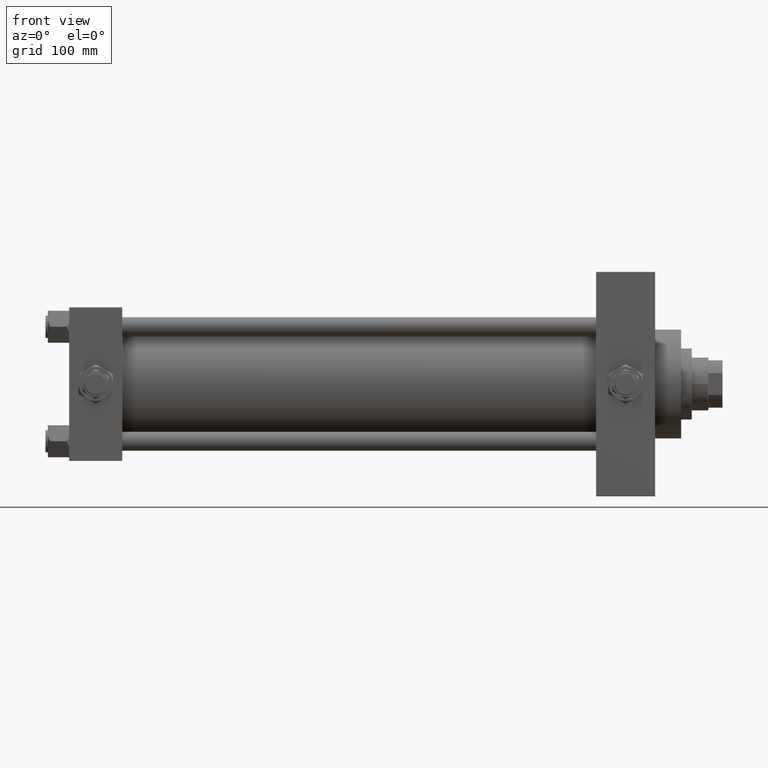
[diagram: clean part render]
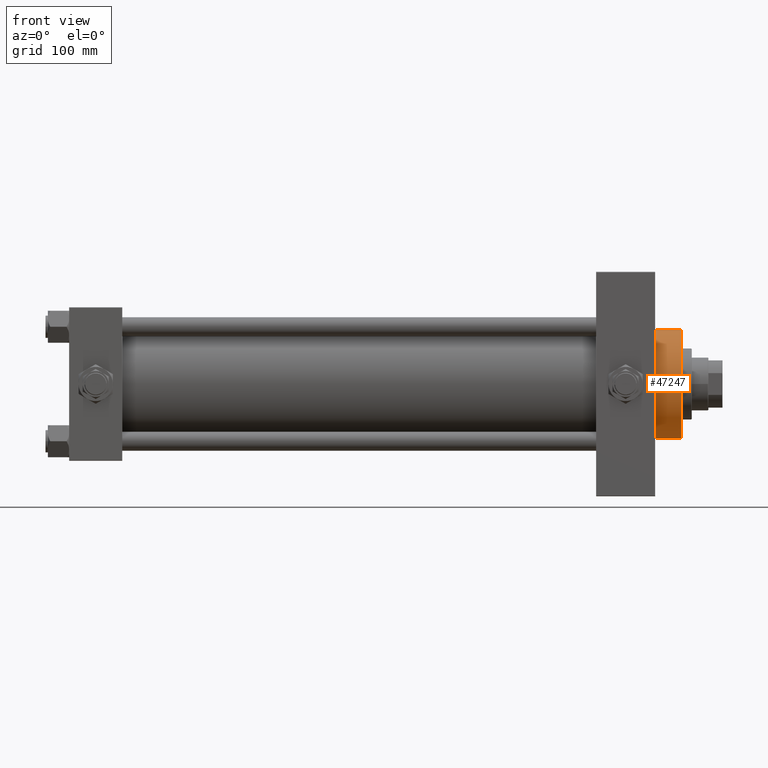
[diagram: same view with one face highlighted and labeled with its STEP entity id]
A machine part, front view. The second image highlights one B-rep face of the part: STEP entity #47247.
In plain terms, the highlighted cylindrical surface (partial cylindrical patch) has radius 46 mm, axis along (-1, -0, -0).
Its self-contained STEP definition (entity closure, byte-faithful):
#3767 = DIRECTION ( 'NONE',  ( 1.000000000000000000, 0.000000000000000000, 0.000000000000000000 ) ) ;
#4815 = CYLINDRICAL_SURFACE ( 'NONE', #14817, 46.00000000000000000 ) ;
#5735 = CARTESIAN_POINT ( 'NONE',  ( 518.0000000000000000, 0.000000000000000000, 0.000000000000000000 ) ) ;
#7172 = CARTESIAN_POINT ( 'NONE',  ( 518.0000000000000000, 0.000000000000000000, 46.00000000000000000 ) ) ;
#12619 = DIRECTION ( 'NONE',  ( -1.000000000000000000, -0.000000000000000000, -0.000000000000000000 ) ) ;
#12869 = FACE_OUTER_BOUND ( 'NONE', #47106, .T. ) ;
#13523 = ORIENTED_EDGE ( 'NONE', *, *, #33942, .T. ) ;
#14092 = CARTESIAN_POINT ( 'NONE',  ( 496.0000000000000000, 0.000000000000000000, 46.00000000000000000 ) ) ;
#14131 = DIRECTION ( 'NONE',  ( -1.000000000000000000, -0.000000000000000000, -0.000000000000000000 ) ) ;
#14817 = AXIS2_PLACEMENT_3D ( 'NONE', #46867, #12619, #16152 ) ;
#15074 = ORIENTED_EDGE ( 'NONE', *, *, #48621, .T. ) ;
#15821 = CIRCLE ( 'NONE', #25470, 46.00000000000000000 ) ;
#15926 = CIRCLE ( 'NONE', #28883, 46.00000000000000000 ) ;
#16152 = DIRECTION ( 'NONE',  ( 0.000000000000000000, 0.000000000000000000, 1.000000000000000000 ) ) ;
#16933 = EDGE_CURVE ( 'NONE', #17466, #32913, #15926, .T. ) ;
#17466 = VERTEX_POINT ( 'NONE', #7172 ) ;
#19660 = VECTOR ( 'NONE', #37047, 1000.000000000000000 ) ;
#25470 = AXIS2_PLACEMENT_3D ( 'NONE', #33751, #3767, #42049 ) ;
#28648 = DIRECTION ( 'NONE',  ( 1.000000000000000000, 0.000000000000000000, 0.000000000000000000 ) ) ;
#28883 = AXIS2_PLACEMENT_3D ( 'NONE', #5735, #28648, #39744 ) ;
#28979 = LINE ( 'NONE', #32514, #19660 ) ;
#29180 = VERTEX_POINT ( 'NONE', #14092 ) ;
#32514 = CARTESIAN_POINT ( 'NONE',  ( 518.0000000000000000, 0.000000000000000000, 46.00000000000000000 ) ) ;
#32913 = VERTEX_POINT ( 'NONE', #39130 ) ;
#33022 = LINE ( 'NONE', #48886, #35325 ) ;
#33751 = CARTESIAN_POINT ( 'NONE',  ( 496.0000000000000000, 0.000000000000000000, 0.000000000000000000 ) ) ;
#33942 = EDGE_CURVE ( 'NONE', #29180, #38817, #15821, .T. ) ;
#35325 = VECTOR ( 'NONE', #14131, 1000.000000000000000 ) ;
#37047 = DIRECTION ( 'NONE',  ( -1.000000000000000000, -0.000000000000000000, -0.000000000000000000 ) ) ;
#37268 = CARTESIAN_POINT ( 'NONE',  ( 496.0000000000000000, 5.633375276077824704E-15, -46.00000000000000000 ) ) ;
#38817 = VERTEX_POINT ( 'NONE', #37268 ) ;
#39130 = CARTESIAN_POINT ( 'NONE',  ( 518.0000000000000000, 5.633375276077824704E-15, -46.00000000000000000 ) ) ;
#39744 = DIRECTION ( 'NONE',  ( 0.000000000000000000, 0.000000000000000000, -1.000000000000000000 ) ) ;
#40385 = EDGE_CURVE ( 'NONE', #32913, #38817, #33022, .T. ) ;
#41092 = ORIENTED_EDGE ( 'NONE', *, *, #40385, .F. ) ;
#42049 = DIRECTION ( 'NONE',  ( 0.000000000000000000, 0.000000000000000000, -1.000000000000000000 ) ) ;
#46107 = ORIENTED_EDGE ( 'NONE', *, *, #16933, .F. ) ;
#46867 = CARTESIAN_POINT ( 'NONE',  ( 518.0000000000000000, 0.000000000000000000, 0.000000000000000000 ) ) ;
#47106 = EDGE_LOOP ( 'NONE', ( #41092, #46107, #15074, #13523 ) ) ;
#47247 = ADVANCED_FACE ( 'NONE', ( #12869 ), #4815, .T. ) ;
#48621 = EDGE_CURVE ( 'NONE', #17466, #29180, #28979, .T. ) ;
#48886 = CARTESIAN_POINT ( 'NONE',  ( 518.0000000000000000, 5.633375276077824704E-15, -46.00000000000000000 ) ) ;